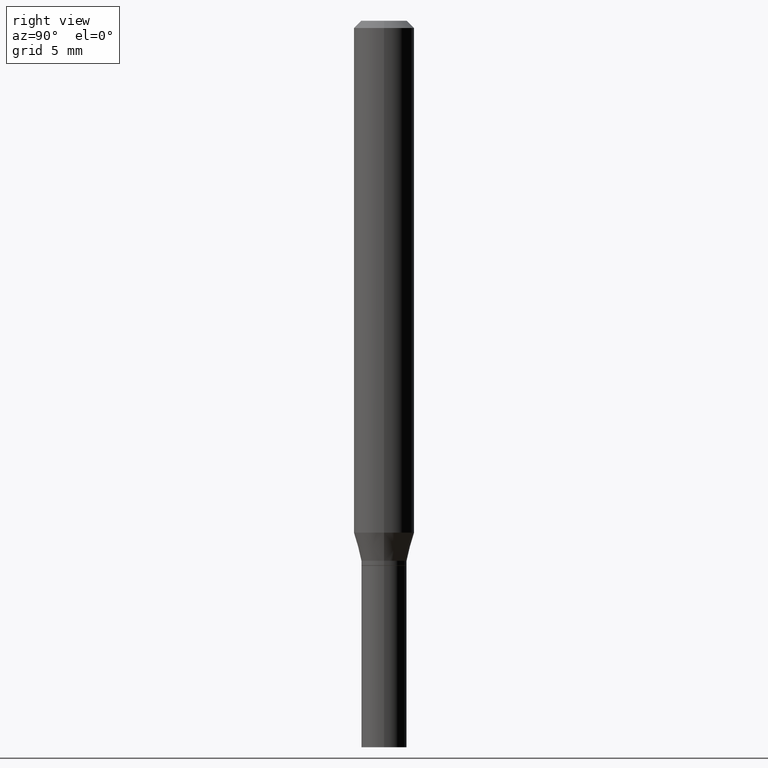
[diagram: clean part render]
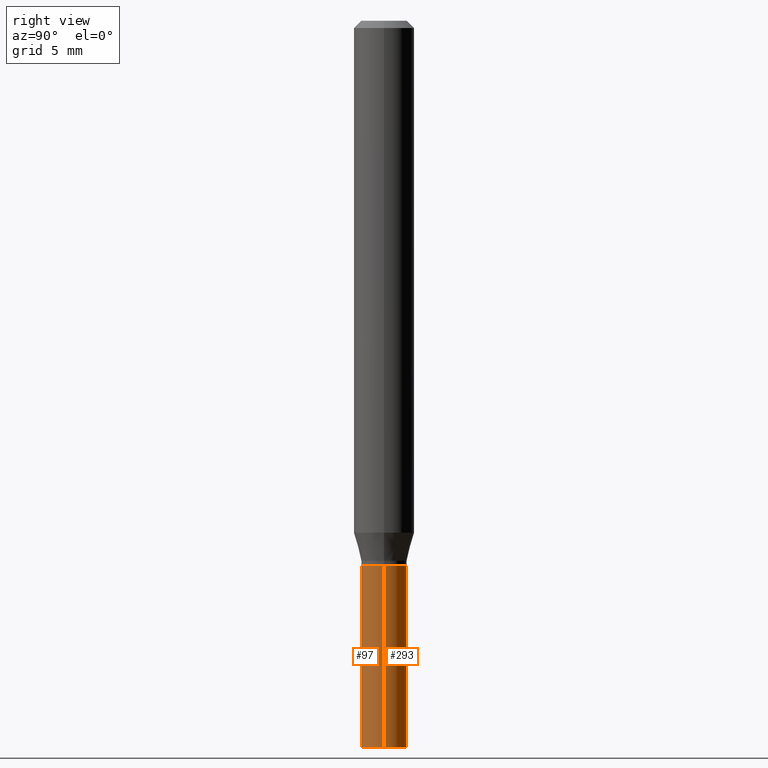
[diagram: same view with one multi-face feature highlighted, each face labeled with its STEP entity id]
A machine part, right view. The highlighted faces form ONE feature: a constant-radius fillet chain: 2 tangent blend faces with common blend radius 1.1913 mm. The faces share edges in the B-rep.
Their STEP definitions:
[1] entity #97 (Cylinder):
#1 = EDGE_CURVE ( 'NONE', #136, #119, #212, .T. ) ;
#14 = EDGE_LOOP ( 'NONE', ( #169, #352, #58, #139 ) ) ;
#30 = VECTOR ( 'NONE', #278, 39.37007874015748143 ) ;
#32 = LINE ( 'NONE', #67, #30 ) ;
#33 = CARTESIAN_POINT ( 'NONE',  ( 0.04689999999999999725, -3.275009495834859024E-16, 2.286926907848294038E-30 ) ) ;
#48 = CARTESIAN_POINT ( 'NONE',  ( 0.000000000000000000, 0.000000000000000000, 0.000000000000000000 ) ) ;
#58 = ORIENTED_EDGE ( 'NONE', *, *, #337, .T. ) ;
#67 = CARTESIAN_POINT ( 'NONE',  ( -0.04689999999999999725, 3.332445430714869676E-16, -2.306980557329550952E-30 ) ) ;
#78 = DIRECTION ( 'NONE',  ( 1.000000000000000000, -6.982962677686266711E-15, 0.000000000000000000 ) ) ;
#97 = ADVANCED_FACE ( 'NONE', ( #215 ), #365, .T. ) ;
#119 = VERTEX_POINT ( 'NONE', #364 ) ;
#134 = AXIS2_PLACEMENT_3D ( 'NONE', #294, #249, #78 ) ;
#136 = VERTEX_POINT ( 'NONE', #304 ) ;
#139 = ORIENTED_EDGE ( 'NONE', *, *, #188, .F. ) ;
#151 = DIRECTION ( 'NONE',  ( 1.000000000000000000, -6.982962677686266711E-15, 4.876176775795936353E-29 ) ) ;
#169 = ORIENTED_EDGE ( 'NONE', *, *, #333, .F. ) ;
#178 = AXIS2_PLACEMENT_3D ( 'NONE', #297, #241, #321 ) ;
#184 = CARTESIAN_POINT ( 'NONE',  ( -0.04689999999999999725, -4.249324714160141733E-15, -1.125000000000000222 ) ) ;
#188 = EDGE_CURVE ( 'NONE', #438, #348, #340, .T. ) ;
#212 = CIRCLE ( 'NONE', #178, 0.04689999999999999725 ) ;
#215 = FACE_OUTER_BOUND ( 'NONE', #14, .T. ) ;
#237 = LINE ( 'NONE', #33, #289 ) ;
#241 = DIRECTION ( 'NONE',  ( -2.445468806185136597E-29, 3.491481338843145583E-15, 1.000000000000000000 ) ) ;
#249 = DIRECTION ( 'NONE',  ( -2.445468806185136597E-29, 3.491481338843145583E-15, 1.000000000000000000 ) ) ;
#278 = DIRECTION ( 'NONE',  ( -2.445468806185136877E-29, 3.491481338843145188E-15, 1.000000000000000000 ) ) ;
#289 = VECTOR ( 'NONE', #420, 39.37007874015748143 ) ;
#294 = CARTESIAN_POINT ( 'NONE',  ( 2.751152406958279232E-29, -3.927916506198539224E-15, -1.125000000000000222 ) ) ;
#297 = CARTESIAN_POINT ( 'NONE',  ( 3.668203209277704895E-29, -5.237222008264718177E-15, -1.500000000000000222 ) ) ;
#304 = CARTESIAN_POINT ( 'NONE',  ( -0.04689999999999999725, -4.249324714160141733E-15, -1.500000000000000222 ) ) ;
#321 = DIRECTION ( 'NONE',  ( 1.000000000000000000, -6.982962677686256455E-15, 0.000000000000000000 ) ) ;
#333 = EDGE_CURVE ( 'NONE', #136, #438, #32, .T. ) ;
#335 = AXIS2_PLACEMENT_3D ( 'NONE', #48, #441, #151 ) ;
#337 = EDGE_CURVE ( 'NONE', #119, #348, #237, .T. ) ;
#340 = CIRCLE ( 'NONE', #134, 0.04689999999999999725 ) ;
#348 = VERTEX_POINT ( 'NONE', #356 ) ;
#352 = ORIENTED_EDGE ( 'NONE', *, *, #1, .T. ) ;
#356 = CARTESIAN_POINT ( 'NONE',  ( 0.04689999999999999725, -4.255417455782025127E-15, -1.125000000000000222 ) ) ;
#364 = CARTESIAN_POINT ( 'NONE',  ( 0.04689999999999999725, -5.564722957848204079E-15, -1.500000000000000222 ) ) ;
#365 = CYLINDRICAL_SURFACE ( 'NONE', #335, 0.04689999999999999725 ) ;
#420 = DIRECTION ( 'NONE',  ( -2.445468806185136877E-29, 3.491481338843145188E-15, 1.000000000000000000 ) ) ;
#438 = VERTEX_POINT ( 'NONE', #184 ) ;
#441 = DIRECTION ( 'NONE',  ( -2.445468806185136597E-29, 3.491481338843145583E-15, 1.000000000000000000 ) ) ;
[2] entity #293 (Cylinder):
#21 = DIRECTION ( 'NONE',  ( -2.445468806185136597E-29, 3.491481338843145583E-15, 1.000000000000000000 ) ) ;
#30 = VECTOR ( 'NONE', #278, 39.37007874015748143 ) ;
#32 = LINE ( 'NONE', #67, #30 ) ;
#33 = CARTESIAN_POINT ( 'NONE',  ( 0.04689999999999999725, -3.275009495834859024E-16, 2.286926907848294038E-30 ) ) ;
#44 = AXIS2_PLACEMENT_3D ( 'NONE', #181, #252, #263 ) ;
#67 = CARTESIAN_POINT ( 'NONE',  ( -0.04689999999999999725, 3.332445430714869676E-16, -2.306980557329550952E-30 ) ) ;
#69 = AXIS2_PLACEMENT_3D ( 'NONE', #275, #21, #228 ) ;
#74 = ORIENTED_EDGE ( 'NONE', *, *, #204, .F. ) ;
#119 = VERTEX_POINT ( 'NONE', #364 ) ;
#121 = CIRCLE ( 'NONE', #44, 0.04689999999999999725 ) ;
#129 = CYLINDRICAL_SURFACE ( 'NONE', #399, 0.04689999999999999725 ) ;
#136 = VERTEX_POINT ( 'NONE', #304 ) ;
#158 = EDGE_CURVE ( 'NONE', #119, #136, #419, .T. ) ;
#168 = CARTESIAN_POINT ( 'NONE',  ( 0.000000000000000000, 0.000000000000000000, 0.000000000000000000 ) ) ;
#181 = CARTESIAN_POINT ( 'NONE',  ( 2.751152406958279232E-29, -3.927916506198539224E-15, -1.125000000000000222 ) ) ;
#184 = CARTESIAN_POINT ( 'NONE',  ( -0.04689999999999999725, -4.249324714160141733E-15, -1.125000000000000222 ) ) ;
#204 = EDGE_CURVE ( 'NONE', #348, #438, #121, .T. ) ;
#228 = DIRECTION ( 'NONE',  ( 1.000000000000000000, -6.982962677686256455E-15, 0.000000000000000000 ) ) ;
#237 = LINE ( 'NONE', #33, #289 ) ;
#252 = DIRECTION ( 'NONE',  ( -2.445468806185136597E-29, 3.491481338843145583E-15, 1.000000000000000000 ) ) ;
#263 = DIRECTION ( 'NONE',  ( 1.000000000000000000, -6.982962677686266711E-15, 0.000000000000000000 ) ) ;
#275 = CARTESIAN_POINT ( 'NONE',  ( 3.668203209277704895E-29, -5.237222008264718177E-15, -1.500000000000000222 ) ) ;
#278 = DIRECTION ( 'NONE',  ( -2.445468806185136877E-29, 3.491481338843145188E-15, 1.000000000000000000 ) ) ;
#285 = FACE_OUTER_BOUND ( 'NONE', #315, .T. ) ;
#289 = VECTOR ( 'NONE', #420, 39.37007874015748143 ) ;
#293 = ADVANCED_FACE ( 'NONE', ( #285 ), #129, .T. ) ;
#304 = CARTESIAN_POINT ( 'NONE',  ( -0.04689999999999999725, -4.249324714160141733E-15, -1.500000000000000222 ) ) ;
#310 = DIRECTION ( 'NONE',  ( 1.000000000000000000, -6.982962677686266711E-15, 4.876176775795936353E-29 ) ) ;
#311 = ORIENTED_EDGE ( 'NONE', *, *, #333, .T. ) ;
#315 = EDGE_LOOP ( 'NONE', ( #385, #311, #74, #412 ) ) ;
#333 = EDGE_CURVE ( 'NONE', #136, #438, #32, .T. ) ;
#337 = EDGE_CURVE ( 'NONE', #119, #348, #237, .T. ) ;
#348 = VERTEX_POINT ( 'NONE', #356 ) ;
#356 = CARTESIAN_POINT ( 'NONE',  ( 0.04689999999999999725, -4.255417455782025127E-15, -1.125000000000000222 ) ) ;
#364 = CARTESIAN_POINT ( 'NONE',  ( 0.04689999999999999725, -5.564722957848204079E-15, -1.500000000000000222 ) ) ;
#385 = ORIENTED_EDGE ( 'NONE', *, *, #158, .T. ) ;
#399 = AXIS2_PLACEMENT_3D ( 'NONE', #168, #415, #310 ) ;
#412 = ORIENTED_EDGE ( 'NONE', *, *, #337, .F. ) ;
#415 = DIRECTION ( 'NONE',  ( -2.445468806185136597E-29, 3.491481338843145583E-15, 1.000000000000000000 ) ) ;
#419 = CIRCLE ( 'NONE', #69, 0.04689999999999999725 ) ;
#420 = DIRECTION ( 'NONE',  ( -2.445468806185136877E-29, 3.491481338843145188E-15, 1.000000000000000000 ) ) ;
#438 = VERTEX_POINT ( 'NONE', #184 ) ;